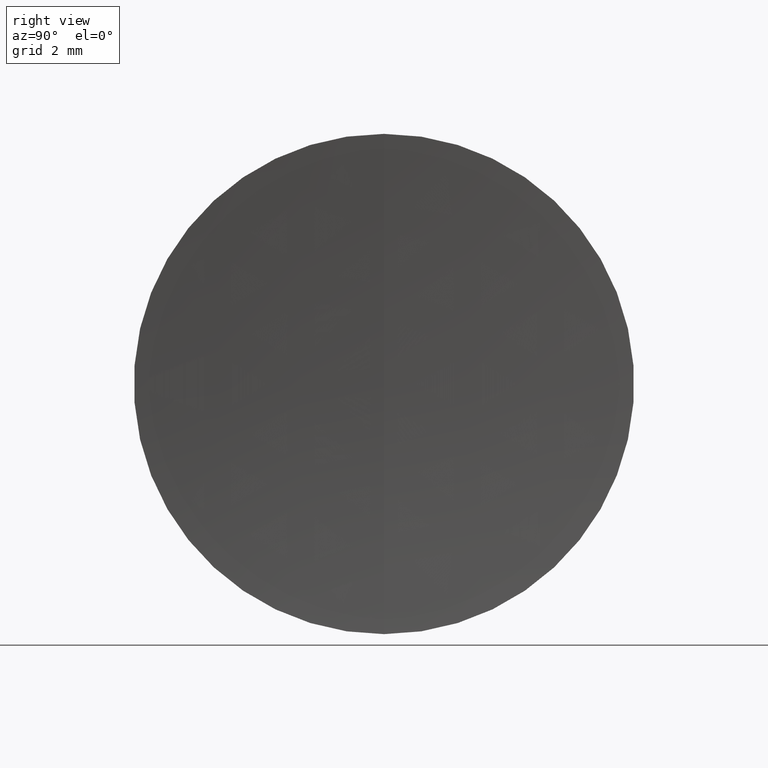
[diagram: clean part render]
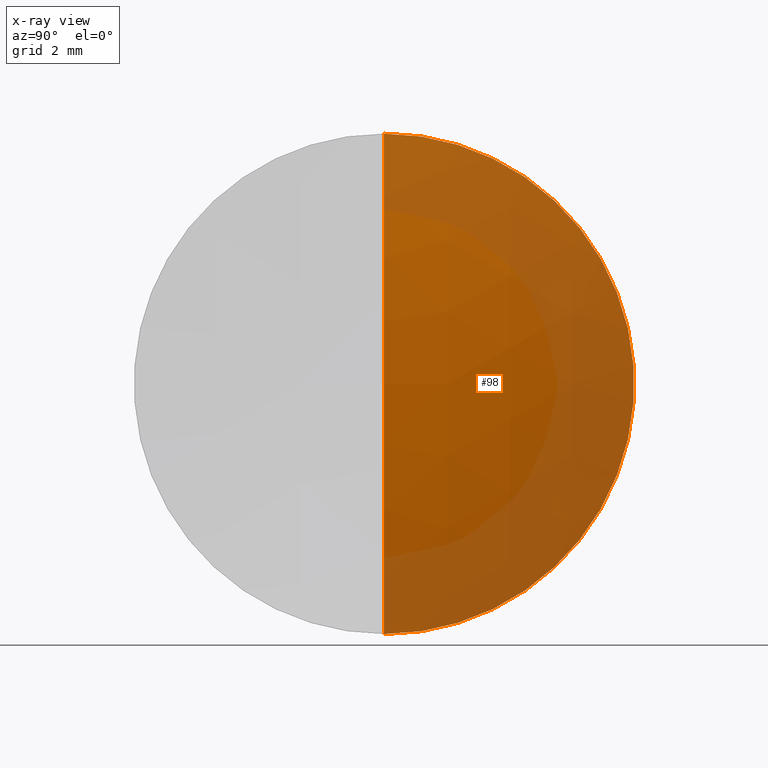
[diagram: x-ray — body ghosted, one internal face saturated and labeled with its STEP entity id]
A machine part, right view, then the same camera in x-ray: the body is ghosted and one INTERNAL B-rep face — a face not visible from any outside direction — is saturated and labeled: STEP entity #98.
In plain terms, the highlighted spherical surface has radius 27.86 mm.
Its self-contained STEP definition (entity closure, byte-faithful):
#14 = EDGE_CURVE ( 'NONE', #107, #101, #131, .T. ) ;
#19 = AXIS2_PLACEMENT_3D ( 'NONE', #32, #57, #94 ) ;
#31 = EDGE_CURVE ( 'NONE', #93, #101, #295, .T. ) ;
#32 = CARTESIAN_POINT ( 'NONE',  ( 11.46197047241490300, 0.0000000000000000000, 2.106783712148525000E-015 ) ) ;
#57 = DIRECTION ( 'NONE',  ( 0.0000000000000000000, -1.000000000000000000, 0.0000000000000000000 ) ) ;
#58 = ORIENTED_EDGE ( 'NONE', *, *, #31, .F. ) ;
#68 = DIRECTION ( 'NONE',  ( 0.0000000000000000000, -1.224646799147353200E-016, 1.000000000000000000 ) ) ;
#74 = CIRCLE ( 'NONE', #19, 27.86000000000000300 ) ;
#93 = VERTEX_POINT ( 'NONE', #273 ) ;
#94 = DIRECTION ( 'NONE',  ( 0.0000000000000000000, 0.0000000000000000000, -1.000000000000000000 ) ) ;
#96 = CARTESIAN_POINT ( 'NONE',  ( 38.58865659512439800, 7.776507174585693100E-016, -6.350000000000000500 ) ) ;
#98 = ADVANCED_FACE ( 'NONE', ( #221 ), #301, .T. ) ;
#99 = EDGE_LOOP ( 'NONE', ( #186, #222, #58 ) ) ;
#101 = VERTEX_POINT ( 'NONE', #96 ) ;
#106 = AXIS2_PLACEMENT_3D ( 'NONE', #304, #259, #68 ) ;
#107 = VERTEX_POINT ( 'NONE', #346 ) ;
#131 = CIRCLE ( 'NONE', #106, 27.86000000000000300 ) ;
#140 = AXIS2_PLACEMENT_3D ( 'NONE', #148, #311, #286 ) ;
#148 = CARTESIAN_POINT ( 'NONE',  ( 38.58865659512439800, 0.0000000000000000000, 0.0000000000000000000 ) ) ;
#152 = CARTESIAN_POINT ( 'NONE',  ( 11.46197047241490300, 0.0000000000000000000, 2.106783712148525000E-015 ) ) ;
#186 = ORIENTED_EDGE ( 'NONE', *, *, #258, .F. ) ;
#221 = FACE_OUTER_BOUND ( 'NONE', #99, .T. ) ;
#222 = ORIENTED_EDGE ( 'NONE', *, *, #14, .T. ) ;
#258 = EDGE_CURVE ( 'NONE', #107, #93, #74, .T. ) ;
#259 = DIRECTION ( 'NONE',  ( -0.0000000000000000000, 1.000000000000000000, 1.224646799147353200E-016 ) ) ;
#273 = CARTESIAN_POINT ( 'NONE',  ( 38.58865659512439800, 0.0000000000000000000, 6.350000000000000500 ) ) ;
#280 = AXIS2_PLACEMENT_3D ( 'NONE', #152, #341, #292 ) ;
#286 = DIRECTION ( 'NONE',  ( 0.0000000000000000000, 0.0000000000000000000, 1.000000000000000000 ) ) ;
#292 = DIRECTION ( 'NONE',  ( 0.0000000000000000000, 0.0000000000000000000, 1.000000000000000000 ) ) ;
#295 = CIRCLE ( 'NONE', #140, 6.350000000000000500 ) ;
#301 = SPHERICAL_SURFACE ( 'NONE', #280, 27.86000000000000300 ) ;
#304 = CARTESIAN_POINT ( 'NONE',  ( 11.46197047241490300, 0.0000000000000000000, 2.106783712148525000E-015 ) ) ;
#311 = DIRECTION ( 'NONE',  ( -1.000000000000000000, -0.0000000000000000000, -0.0000000000000000000 ) ) ;
#341 = DIRECTION ( 'NONE',  ( 0.0000000000000000000, 1.000000000000000000, 0.0000000000000000000 ) ) ;
#346 = CARTESIAN_POINT ( 'NONE',  ( 39.32197047241490400, 0.0000000000000000000, 3.812716703360788000E-015 ) ) ;